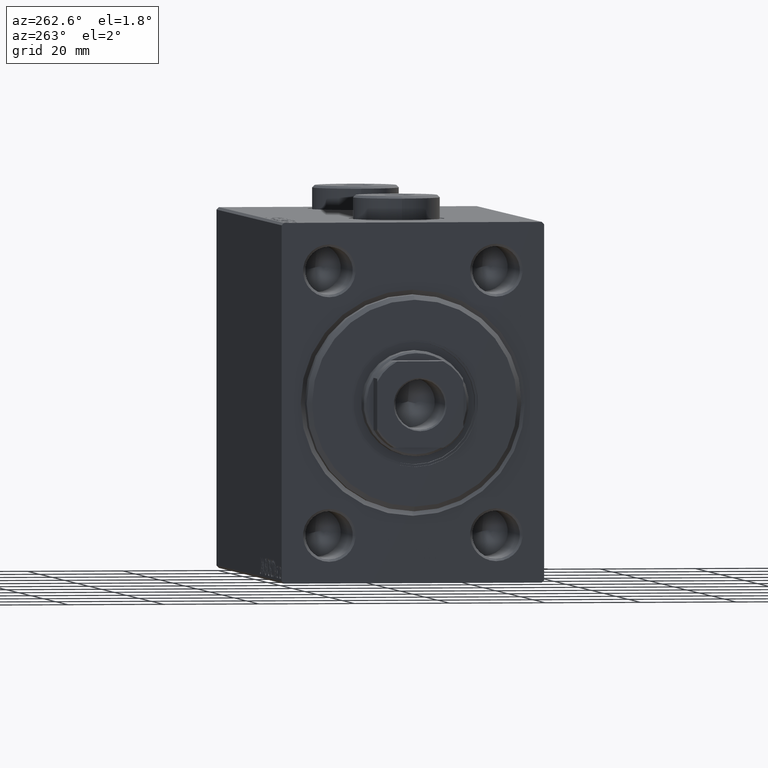
[diagram: clean part render]
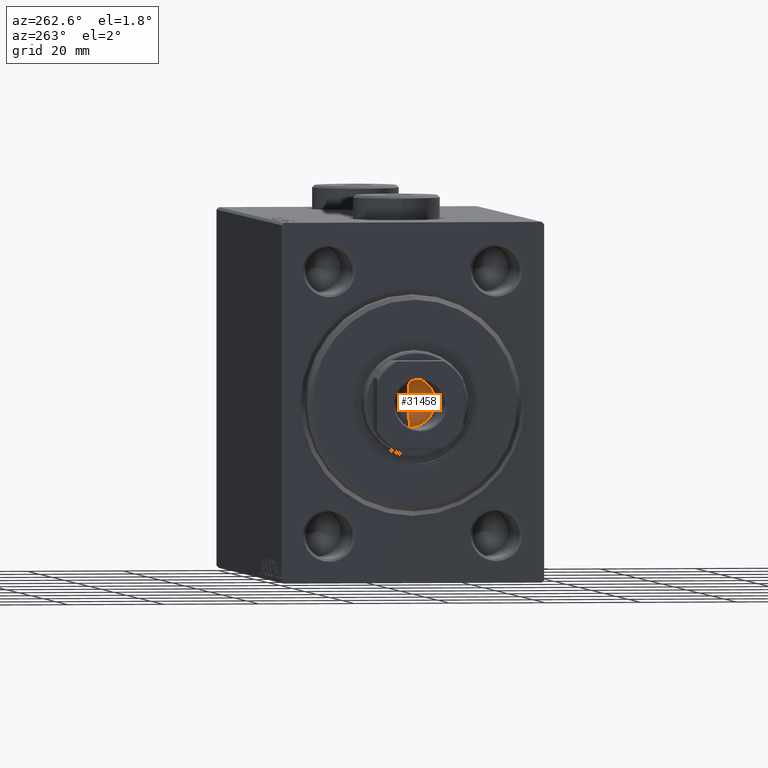
[diagram: same view with one face highlighted and labeled with its STEP entity id]
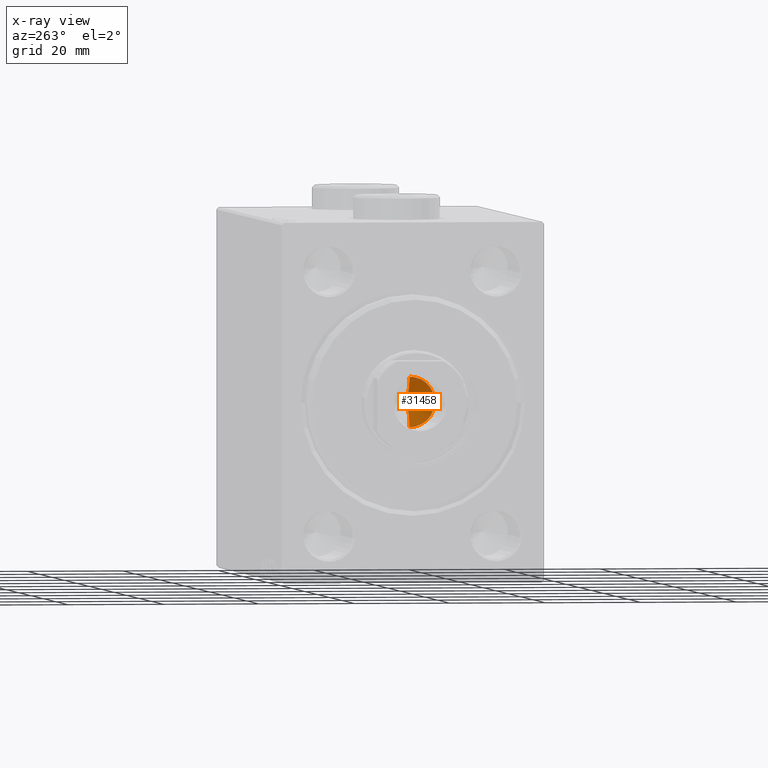
[diagram: x-ray of the same camera — body ghosted, the highlighted face saturated]
A machine part, auxiliary view. The second image highlights one B-rep face of the part: STEP entity #31458.
The next image is the same camera in x-ray: the body ghosted, the highlighted face saturated — about 0% of this face is hidden behind the body in this view.
In plain terms, the highlighted conical surface has half-angle 59 deg.
Its self-contained STEP definition (entity closure, byte-faithful):
#35 = VERTEX_POINT ( 'NONE', #2042 ) ;
#590 = AXIS2_PLACEMENT_3D ( 'NONE', #7139, #21217, #10137 ) ;
#667 = DIRECTION ( 'NONE',  ( 0.8571673007021115565, 0.000000000000000000, 0.5150380749100554878 ) ) ;
#2042 = CARTESIAN_POINT ( 'NONE',  ( -5.249999999999995559, 6.429395695523600208E-16, 90.00000000000001421 ) ) ;
#2359 = LINE ( 'NONE', #33482, #41768 ) ;
#4102 = EDGE_CURVE ( 'NONE', #14878, #30103, #42608, .T. ) ;
#7139 = CARTESIAN_POINT ( 'NONE',  ( 0.000000000000000000, 0.000000000000000000, 90.00000000000001421 ) ) ;
#10137 = DIRECTION ( 'NONE',  ( 1.000000000000000000, 0.000000000000000000, 0.000000000000000000 ) ) ;
#12724 = DIRECTION ( 'NONE',  ( -0.000000000000000000, -0.000000000000000000, 1.000000000000000000 ) ) ;
#14878 = VERTEX_POINT ( 'NONE', #24078 ) ;
#15958 = DIRECTION ( 'NONE',  ( 1.000000000000000000, 0.000000000000000000, 0.000000000000000000 ) ) ;
#16526 = ORIENTED_EDGE ( 'NONE', *, *, #31115, .T. ) ;
#16602 = FACE_OUTER_BOUND ( 'NONE', #24913, .T. ) ;
#16836 = VECTOR ( 'NONE', #667, 1000.000000000000000 ) ;
#17959 = CARTESIAN_POINT ( 'NONE',  ( 5.249999999999995559, 0.000000000000000000, 90.00000000000001421 ) ) ;
#18288 = ORIENTED_EDGE ( 'NONE', *, *, #4102, .F. ) ;
#19557 = AXIS2_PLACEMENT_3D ( 'NONE', #28888, #12724, #15958 ) ;
#21217 = DIRECTION ( 'NONE',  ( -0.000000000000000000, -0.000000000000000000, 1.000000000000000000 ) ) ;
#21506 = EDGE_CURVE ( 'NONE', #35, #30103, #25444, .T. ) ;
#24078 = CARTESIAN_POINT ( 'NONE',  ( -4.624611670276745537E-15, 0.000000000000000000, 86.84548175010530713 ) ) ;
#24913 = EDGE_LOOP ( 'NONE', ( #18288, #16526, #42405 ) ) ;
#25444 = CIRCLE ( 'NONE', #19557, 5.249999999999995559 ) ;
#28888 = CARTESIAN_POINT ( 'NONE',  ( 0.000000000000000000, 0.000000000000000000, 90.00000000000001421 ) ) ;
#30027 = CONICAL_SURFACE ( 'NONE', #590, 5.249999999999995559, 1.029744258676652979 ) ;
#30103 = VERTEX_POINT ( 'NONE', #17959 ) ;
#31115 = EDGE_CURVE ( 'NONE', #14878, #35, #2359, .T. ) ;
#31458 = ADVANCED_FACE ( 'NONE', ( #16602 ), #30027, .F. ) ;
#32234 = CARTESIAN_POINT ( 'NONE',  ( 5.249999999999995559, 0.000000000000000000, 90.00000000000001421 ) ) ;
#33482 = CARTESIAN_POINT ( 'NONE',  ( -5.249999999999995559, 6.429395695523600208E-16, 90.00000000000001421 ) ) ;
#41303 = DIRECTION ( 'NONE',  ( -0.8571673007021115565, 1.049727191138617710E-16, 0.5150380749100554878 ) ) ;
#41768 = VECTOR ( 'NONE', #41303, 1000.000000000000000 ) ;
#42405 = ORIENTED_EDGE ( 'NONE', *, *, #21506, .T. ) ;
#42608 = LINE ( 'NONE', #32234, #16836 ) ;